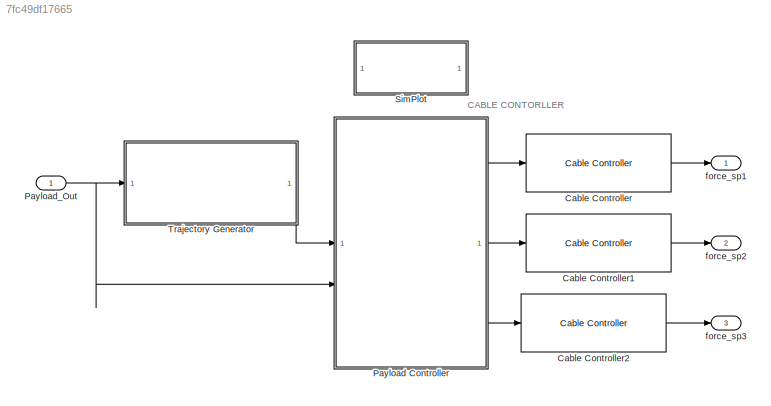
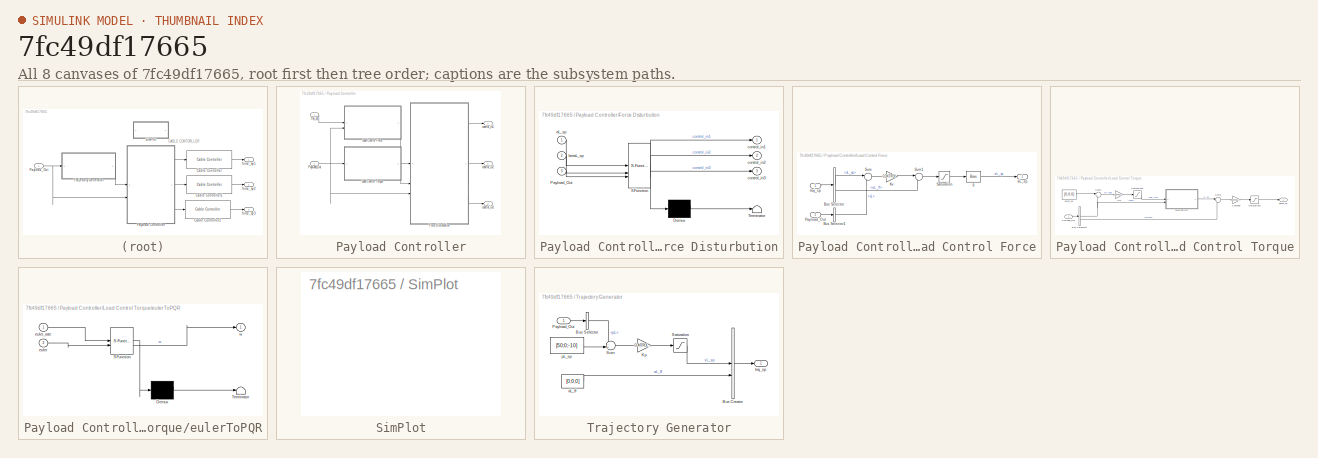
[diagram: thumbnail index - all 8 canvases of the model, root first then tree order]
MODEL slx_7fc49df17665
KIND model
BLOCK [Reference] Cable Controller  REF=mqlib/Cable Controller  (lib defined in slx_e55b6aeabbfa)
  SourceBlock = mqlib/Cable Controller
BLOCK [Reference] Cable Controller1  REF=mqlib/Cable Controller  (lib defined in slx_e55b6aeabbfa)
  SourceBlock = mqlib/Cable Controller
BLOCK [Reference] Cable Controller2  REF=mqlib/Cable Controller  (lib defined in slx_e55b6aeabbfa)
  SourceBlock = mqlib/Cable Controller
BLOCK [SubSystem] Payload Controller
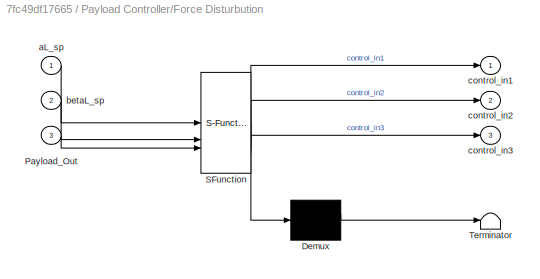
BLOCK [SubSystem] Payload Controller/Force Disturbution
  ErrorFcn = Stateflow.Translate.translate
  PermitHierarchicalResolution = ExplicitOnly
  SFBlockType = MATLAB Function
  TreatAsAtomicUnit = on
BLOCK [Demux] Payload Controller/Force Disturbution/ Demux 
  Outputs = 1
BLOCK [S-Function] Payload Controller/Force Disturbution/ SFunction 
  EnableBusSupport = on
  FunctionName = sf_sfun
  Parameters = mL,rho
  PortCounts = [3 4]
  SFcnIsStateOwnerBlock = off
  SFunctionDeploymentMode = off
  Tag = Stateflow S-Function 1
BLOCK [Terminator] Payload Controller/Force Disturbution/ Terminator 
BLOCK [Inport] Payload Controller/Force Disturbution/Payload_Out
  Port = 3
BLOCK [Inport] Payload Controller/Force Disturbution/aL_sp
BLOCK [Inport] Payload Controller/Force Disturbution/betaL_sp
  Port = 2
BLOCK [Outport] Payload Controller/Force Disturbution/control_in1
BLOCK [Outport] Payload Controller/Force Disturbution/control_in2
  Port = 2
BLOCK [Outport] Payload Controller/Force Disturbution/control_in3
  Port = 3
BLOCK [SubSystem] Payload Controller/Load Control Force
BLOCK [BusSelector] Payload Controller/Load Control Force/Bus Selector
  OutputSignals = vL_sp,aL_ff
BLOCK [BusSelector] Payload Controller/Load Control Force/Bus Selector1
  OutputSignals = vL
BLOCK [Gain] Payload Controller/Load Control Force/Kv
  Gain = CONTROL_PARAM.KV
BLOCK [Inport] Payload Controller/Load Control Force/Payload_Out
  Port = 2
BLOCK [Saturate] Payload Controller/Load Control Force/Saturation
  LowerLimit = -inf
  UpperLimit = Inf
BLOCK [Sum] Payload Controller/Load Control Force/Sum
  Inputs = |+-
BLOCK [Sum] Payload Controller/Load Control Force/Sum1
  Inputs = |++
BLOCK [Outport] Payload Controller/Load Control Force/aL_sp
BLOCK [Bias] Payload Controller/Load Control Force/g
  Bias = [0;0;-CONTROL_CONST.g]
  SaturateOnIntegerOverflow = off
BLOCK [Inport] Payload Controller/Load Control Force/traj_sp
BLOCK [SubSystem] Payload Controller/Load Control Torque
BLOCK [BusSelector] Payload Controller/Load Control Torque/Bus Selector2
  OutputSignals = euler,omega
BLOCK [Gain] Payload Controller/Load Control Torque/KR
  Gain = CONTROL_PARAM.KR
BLOCK [Gain] Payload Controller/Load Control Torque/Komega
  Gain = CONTROL_PARAM.KOMEGA
BLOCK [Inport] Payload Controller/Load Control Torque/Payload_Out
BLOCK [Saturate] Payload Controller/Load Control Torque/Saturation1
  LowerLimit = -inf
  UpperLimit = inf
BLOCK [Saturate] Payload Controller/Load Control Torque/Saturation2
  LowerLimit = -inf
  UpperLimit = inf
BLOCK [Sum] Payload Controller/Load Control Torque/Sum2
  Inputs = |+-
BLOCK [Sum] Payload Controller/Load Control Torque/Sum3
  Inputs = |+-
BLOCK [Outport] Payload Controller/Load Control Torque/betaL_sp
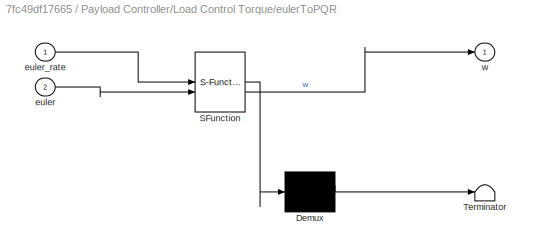
BLOCK [SubSystem] Payload Controller/Load Control Torque/eulerToPQR
  ErrorFcn = Stateflow.Translate.translate
  PermitHierarchicalResolution = ExplicitOnly
  SFBlockType = MATLAB Function
  TreatAsAtomicUnit = on
BLOCK [Demux] Payload Controller/Load Control Torque/eulerToPQR/ Demux 
  Outputs = 1
BLOCK [S-Function] Payload Controller/Load Control Torque/eulerToPQR/ SFunction 
  EnableBusSupport = on
  FunctionName = sf_sfun
  PortCounts = [2 2]
  SFcnIsStateOwnerBlock = off
  SFunctionDeploymentMode = off
  Tag = Stateflow S-Function 2
BLOCK [Terminator] Payload Controller/Load Control Torque/eulerToPQR/ Terminator 
BLOCK [Inport] Payload Controller/Load Control Torque/eulerToPQR/euler
  Port = 2
BLOCK [Inport] Payload Controller/Load Control Torque/eulerToPQR/euler_rate
BLOCK [Outport] Payload Controller/Load Control Torque/eulerToPQR/w
BLOCK [Constant] Payload Controller/Load Control Torque/euler_sp
  Value = [0;0;0]
BLOCK [Inport] Payload Controller/Payload_Out
  Port = 2
BLOCK [Outport] Payload Controller/control_in1
BLOCK [Outport] Payload Controller/control_in2
  Port = 2
BLOCK [Outport] Payload Controller/control_in3
  Port = 3
BLOCK [Inport] Payload Controller/traj_sp
BLOCK [Inport] Payload_Out
  OutDataTypeStr = Bus: Payload_Out_Bus
BLOCK [SubSystem] SimPlot
  OpenFcn = run('simplot.m');
BLOCK [SubSystem] Trajectory Generator
BLOCK [BusCreator] Trajectory Generator/Bus Creator
  DisplayOption = bar
  InheritFromInputs = on
  Inputs = 2
BLOCK [BusSelector] Trajectory Generator/Bus Selector
  OutputSignals = pL
BLOCK [Gain] Trajectory Generator/Kp
  Gain = CONTROL_PARAM.KP
BLOCK [Inport] Trajectory Generator/Payload_Out
BLOCK [Saturate] Trajectory Generator/Saturation
  LowerLimit = -2
  UpperLimit = 2
BLOCK [Sum] Trajectory Generator/Sum
  Inputs = -+|
BLOCK [Constant] Trajectory Generator/aL_ff
  Value = [0;0;0]
BLOCK [Constant] Trajectory Generator/pL_sp
  Value = [50;0;-10]
BLOCK [Outport] Trajectory Generator/traj_sp
BLOCK [Outport] force_sp1
  PortDimensions = 3
BLOCK [Outport] force_sp2
  Port = 2
  PortDimensions = 3
BLOCK [Outport] force_sp3
  Port = 3
  PortDimensions = 3
ANNOTATION (root): CABLE CONTORLLER
LINE Cable Controller1:1 -> force_sp2:1
LINE Cable Controller2:1 -> force_sp3:1
LINE Cable Controller:1 -> force_sp1:1
LINE Payload Controller/Force Disturbution:1 -> Payload Controller/control_in1:1
LINE Payload Controller/Force Disturbution:2 -> Payload Controller/control_in2:1
LINE Payload Controller/Force Disturbution:3 -> Payload Controller/control_in3:1
LINE Payload Controller/Load Control Force/Bus Selector1:1 -> Payload Controller/Load Control Force/Sum:2
LINE Payload Controller/Load Control Force/Bus Selector:1 -> Payload Controller/Load Control Force/Sum:1
LINE Payload Controller/Load Control Force/Bus Selector:2 -> Payload Controller/Load Control Force/Sum1:2
LINE Payload Controller/Load Control Force/Kv:1 -> Payload Controller/Load Control Force/Sum1:1
LINE Payload Controller/Load Control Force/Payload_Out:1 -> Payload Controller/Load Control Force/Bus Selector1:1
LINE Payload Controller/Load Control Force/Saturation:1 -> Payload Controller/Load Control Force/g:1
LINE Payload Controller/Load Control Force/Sum1:1 -> Payload Controller/Load Control Force/Saturation:1
LINE Payload Controller/Load Control Force/Sum:1 -> Payload Controller/Load Control Force/Kv:1
LINE Payload Controller/Load Control Force/g:1 -> Payload Controller/Load Control Force/aL_sp:1
LINE Payload Controller/Load Control Force/traj_sp:1 -> Payload Controller/Load Control Force/Bus Selector:1
LINE Payload Controller/Load Control Force:1 -> Payload Controller/Force Disturbution:1
NET Payload Controller/Load Control Torque/Bus Selector2:1 -> Payload Controller/Load Control Torque/Sum2:2, Payload Controller/Load Control Torque/eulerToPQR:2
LINE Payload Controller/Load Control Torque/Bus Selector2:2 -> Payload Controller/Load Control Torque/Sum3:2
LINE Payload Controller/Load Control Torque/KR:1 -> Payload Controller/Load Control Torque/Saturation1:1
LINE Payload Controller/Load Control Torque/Komega:1 -> Payload Controller/Load Control Torque/Saturation2:1
LINE Payload Controller/Load Control Torque/Payload_Out:1 -> Payload Controller/Load Control Torque/Bus Selector2:1
LINE Payload Controller/Load Control Torque/Saturation1:1 -> Payload Controller/Load Control Torque/eulerToPQR:1
LINE Payload Controller/Load Control Torque/Saturation2:1 -> Payload Controller/Load Control Torque/betaL_sp:1
LINE Payload Controller/Load Control Torque/Sum2:1 -> Payload Controller/Load Control Torque/KR:1
LINE Payload Controller/Load Control Torque/Sum3:1 -> Payload Controller/Load Control Torque/Komega:1
LINE Payload Controller/Load Control Torque/eulerToPQR:1 -> Payload Controller/Load Control Torque/Sum3:1
LINE Payload Controller/Load Control Torque/euler_sp:1 -> Payload Controller/Load Control Torque/Sum2:1
LINE Payload Controller/Load Control Torque:1 -> Payload Controller/Force Disturbution:2
NET Payload Controller/Payload_Out:1 -> Payload Controller/Force Disturbution:3, Payload Controller/Load Control Force:2, Payload Controller/Load Control Torque:1
LINE Payload Controller/traj_sp:1 -> Payload Controller/Load Control Force:1
LINE Payload Controller:1 -> Cable Controller:1
LINE Payload Controller:2 -> Cable Controller1:1
LINE Payload Controller:3 -> Cable Controller2:1
NET Payload_Out:1 -> Payload Controller:2, Trajectory Generator:1
LINE Trajectory Generator/Bus Creator:1 -> Trajectory Generator/traj_sp:1
LINE Trajectory Generator/Bus Selector:1 -> Trajectory Generator/Sum:1
LINE Trajectory Generator/Kp:1 -> Trajectory Generator/Saturation:1
LINE Trajectory Generator/Payload_Out:1 -> Trajectory Generator/Bus Selector:1
LINE Trajectory Generator/Saturation:1 -> Trajectory Generator/Bus Creator:1
LINE Trajectory Generator/Sum:1 -> Trajectory Generator/Kp:1
LINE Trajectory Generator/aL_ff:1 -> Trajectory Generator/Bus Creator:2
LINE Trajectory Generator/pL_sp:1 -> Trajectory Generator/Sum:2
LINE Trajectory Generator:1 -> Payload Controller:1
note: NET lines group one-source signal fan-out (src -> all destinations, sorted); 1:1 wires keep LINE
CHART Payload Controller/Force Disturbution states=1 transitions=1
  STATE_LABEL 'eML_blk_kernel()'
  STATE_LABEL "SCRIPT:\nfunction [control_in1, control_in2, control_in3] = fcn(aL_sp, betaL_sp, Payload_Out, rho, mL)\nRL = eulerToDCM(Payload_Out.euler);\nP = [eye(3) eye(3) eye(3); hat_map(rho(:, 1)) hat_map(rho(:, 2)) hat_map(rho(:, 3))];\nvu = blkdiag(RL, RL, RL) * pinv(P) * [RL'*aL_sp*mL; betaL_sp];\n% persistent vu cnt;\n% if isempty(cnt)\n%     cnt = 0;\n% end\n% cnt = cnt + 1;\n% if isempty(vu) || cnt == 10\n% \n%  ...<+1480ch>"
CHART Payload Controller/Load Control Torque/eulerToPQR states=1 transitions=1
  STATE_LABEL 'eML_blk_kernel()'
  STATE_LABEL 'SCRIPT:\nfunction w = fcn(euler_rate, euler)\n\n    % 计算滚转速率 p\n    p = euler_rate(1) + sin(euler(1)) * tan(euler(2)) * euler_rate(2) + cos(euler(1)) * tan(euler(2)) * euler_rate(3);\n\n    % 计算俯仰速率 q\n    q = cos(euler(1)) * euler_rate(2) - sin(euler(1)) * euler_rate(3);\n\n    % 计算偏航速率 r\n    r = (sin(euler(1)) / cos(euler(2))) * euler_rate(2) + (cos(euler(1)) / cos(euler(2))) * euler_rate(3);\n\n    w = [p...<+13ch>'
CHART  states=0 transitions=0
CHART  states=0 transitions=0
